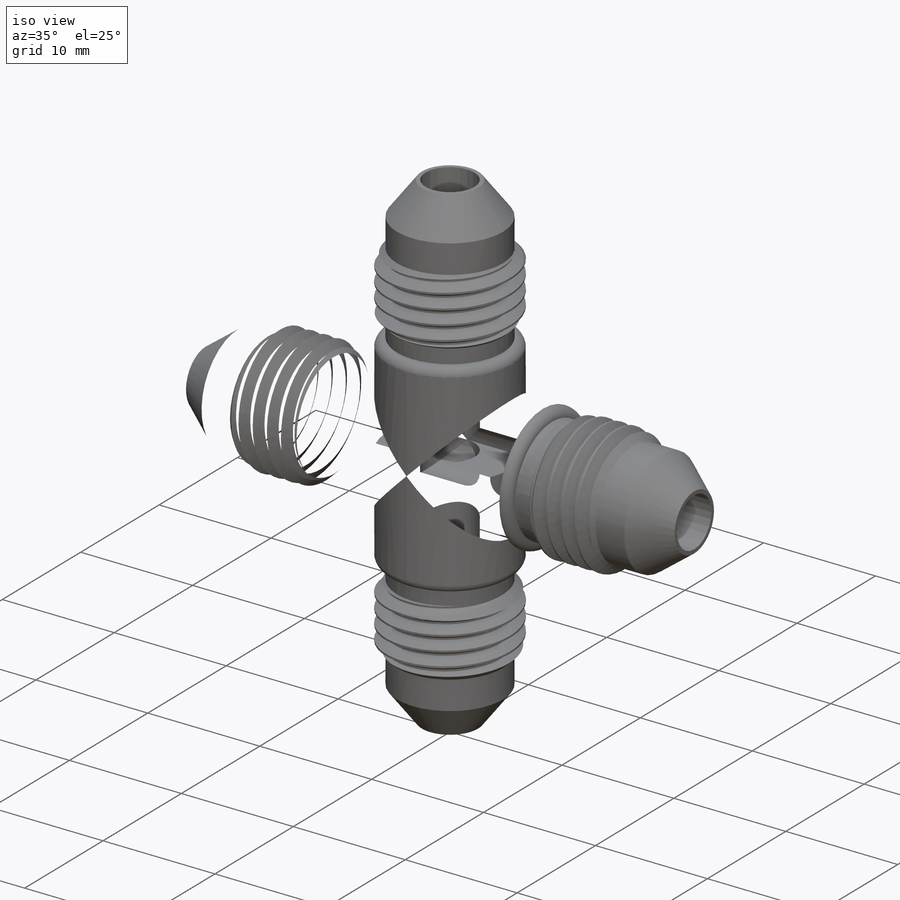
[diagram: iso view]
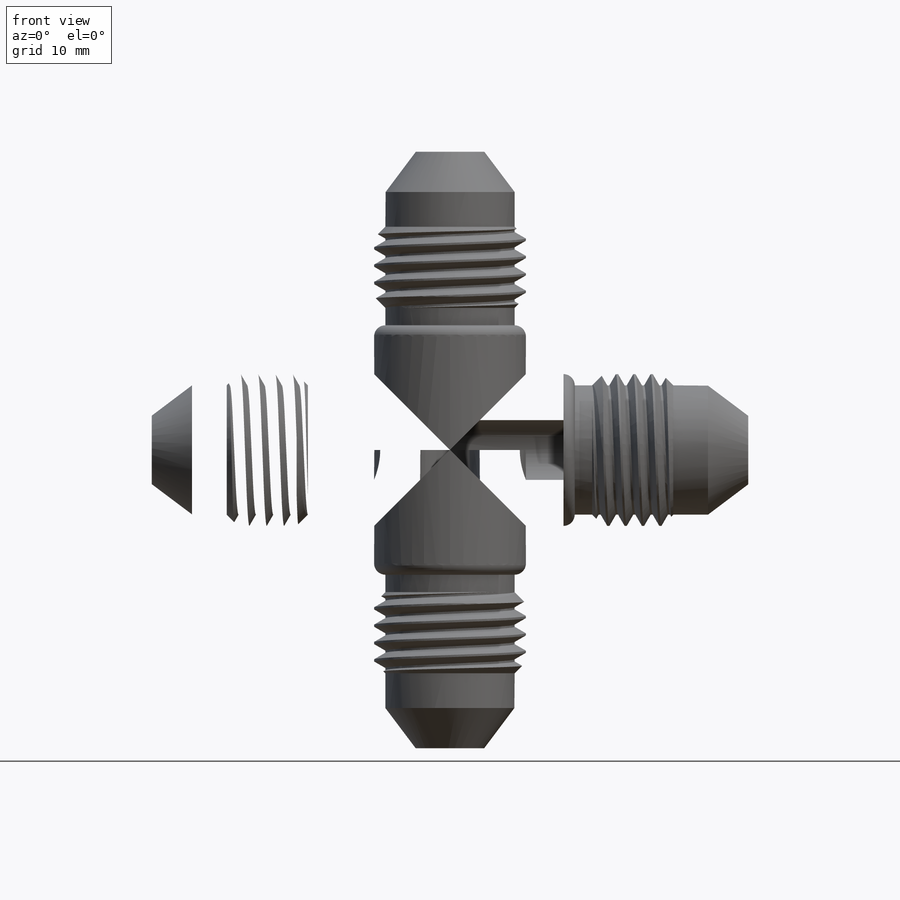
[diagram: front view]
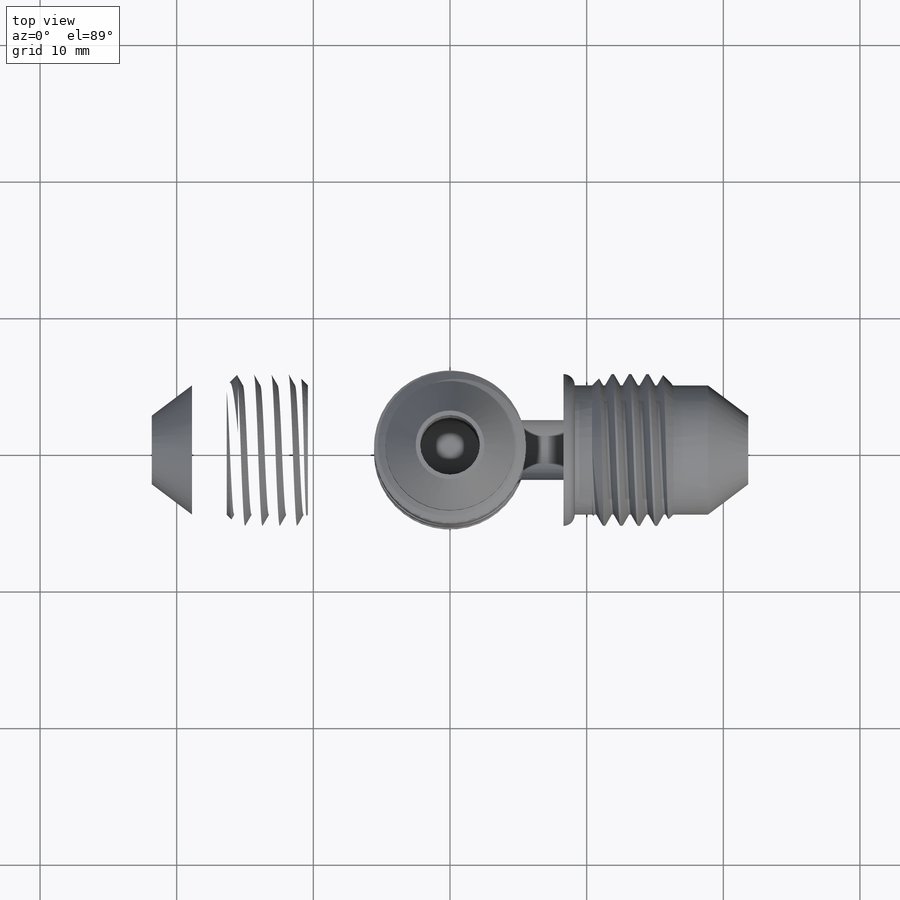
[diagram: top view]
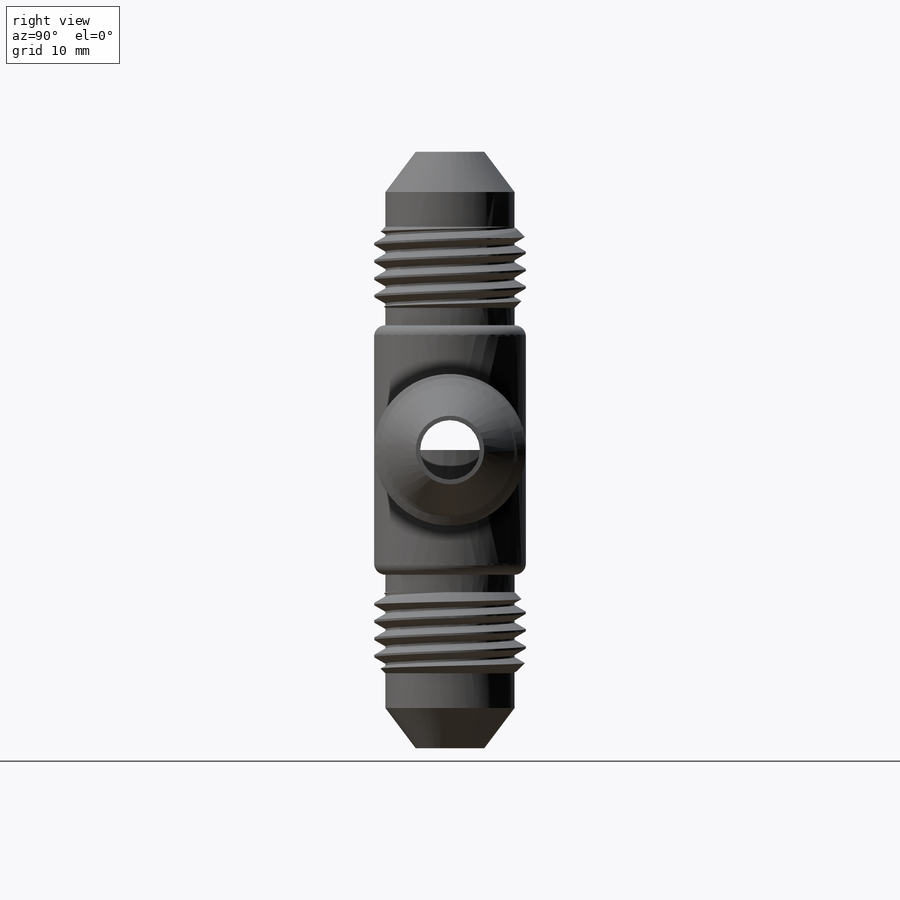
[diagram: right view]
SOLIDWORKS PART (.sldprt)
format: sldprt  version: not decoded by parser v0  size: 1,219,072 bytes
history: native  units: mm
features: sketch x12, cut_extrude x3, plane x2, extrude x2, material x1, helix x1, sweep x1, cut_revolve x1, fillet x1, pattern_circular x1, boolean_combine x1 (+15 scaffold rows collapsed)
feature tree (41):
  scaffold x15  (default folders/planes/origin — collapsed)
  material  "Material <not specified>"
  sketch  "Sketch1"  dims[c1.D1=11.1125mm c1.D2=~7.14375mm c1.Q=~21.828125mm c1.S=12.7mm c2.D2=1.905mm c2.D3=1.905mm c2.D4=~0.873125mm c2.D5=~0.654844mm c2.D6=~8.334375mm c3.D4=~4.60375mm c3.D5=~3.452813mm]
  plane  "Plane1"
  sketch  "Sketch2"  dims[thread OD=26.9875mm Thread OD=11.1125mm]
  extrude  "Extrude1"  [1 undecoded]
  sketch  "Sketch3"
  helix  "Helix/Spiral1"  Pitch=21.828125mm pitch=1.27mm
  sketch  "Sketch4"  dims[c1.D1=~0.15875mm c1.D2=0.635mm c1.D3=~3.517145mm c2.D3=60.0deg c2.D4=~1.11125mm c3.D4=5.0deg]
  sweep  "Cut-Sweep1"
  sketch  "Sketch5"  dims[c1.D7=~0.264583mm c1.D1=~2.116667mm c1.D2=~10.908432mm c2.D2=37.0deg c2.D3=2.54mm c3.D3=45.0deg c3.D4=1.5875mm c3.D5=~3.210319mm c4.D5=45.0deg c4.D6=1.27mm c4.Tube OD=3.175mm c5.Tube OD=6.35mm c5.D2=~5.02412mm c5.D1=~12.303125mm c6.D1=37.0deg c6.D4=2.54mm c6.D7=1.905mm]
  cut_revolve  "Cut-Revolve1"  Angle=360deg
  plane  "Plane2"
  sketch  "Sketch15"
  extrude  "Boss-Extrude1"  [1 undecoded]
  sketch  "Sketch16"  dims[Min ID=4.3688mm]
  cut_extrude  "Cut-Extrude1"  [1 undecoded]
  sketch  "Sketch10"
  fillet  "Fillet3"  [1 undecoded]
  pattern_circular  "CirPattern1"  Count=4 Angle=270deg
  sketch  "Sketch17"
  cut_extrude  "Cut-Extrude2"  [1 undecoded]
  boolean_combine  "Combine1"
  sketch  "Sketch18"
  cut_extrude  "Cut-Extrude3"  [1 undecoded]
  sketch  "Sketch12"
  sketch  "Sketch13"  dims[D1=11.1125mm]
decode coverage: 9 of 23 modeling features carry decoded parameters
note: ~ marks probable driven/reference dimensions
note: 6 parameter values undecoded
summary: no parameter record found for 6 features
note: suppression state not decoded; provenance and decode notes live in map.json
